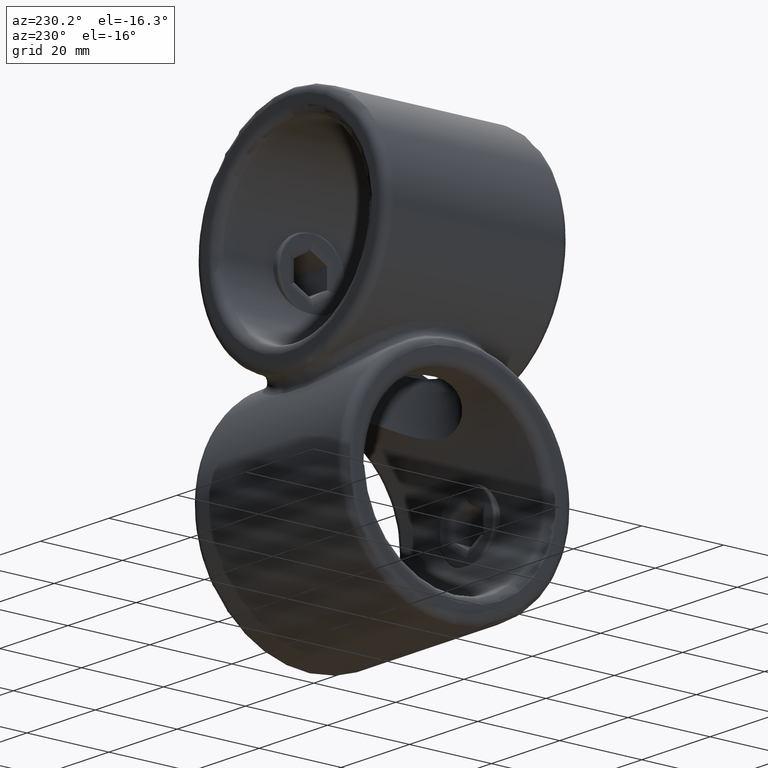
[diagram: clean part render]
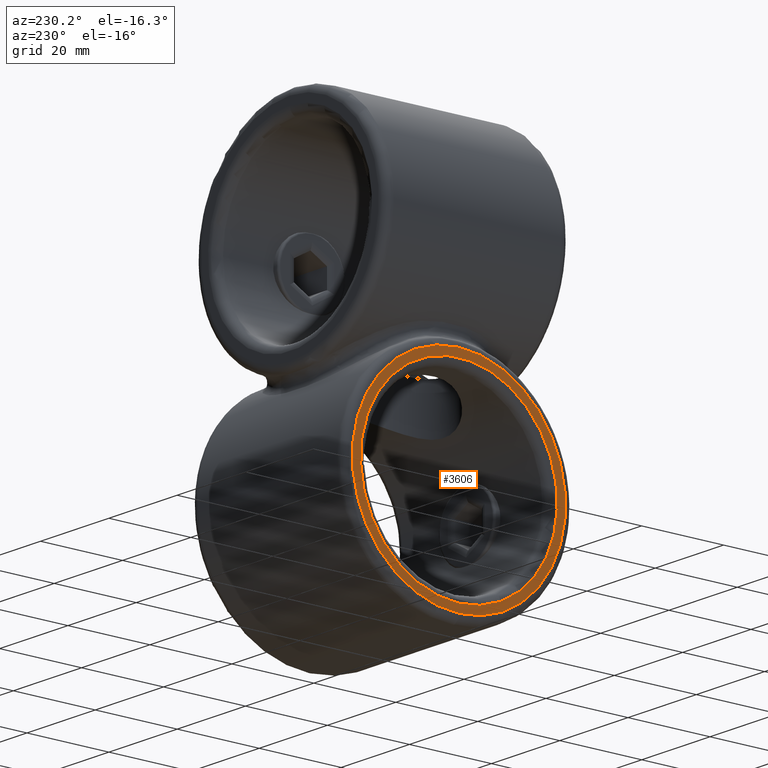
[diagram: same view with one face highlighted and labeled with its STEP entity id]
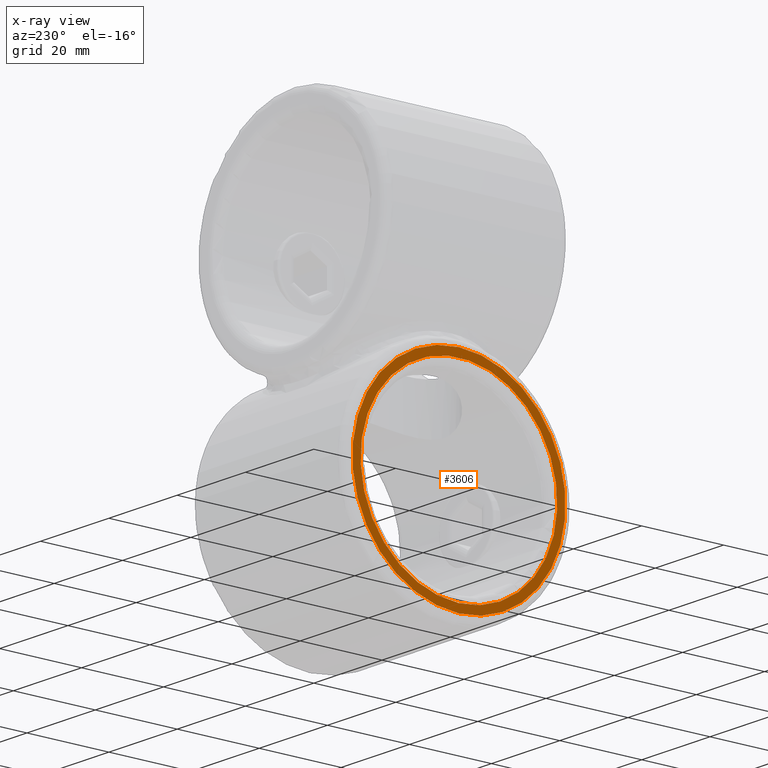
[diagram: x-ray of the same camera — body ghosted, the highlighted face saturated]
A machine part, auxiliary view. The second image highlights one B-rep face of the part: STEP entity #3606.
The next image is the same camera in x-ray: the body ghosted, the highlighted face saturated — about 0% of this face is hidden behind the body in this view.
In plain terms, the highlighted planar face has unit normal (1, 0, 0).
Its self-contained STEP definition (entity closure, byte-faithful):
#41 = DIRECTION ( 'NONE',  ( 0.000000000000000000, 0.000000000000000000, -1.000000000000000000 ) ) ;
#135 = DIRECTION ( 'NONE',  ( -1.000000000000000000, -0.000000000000000000, -0.000000000000000000 ) ) ;
#166 = DIRECTION ( 'NONE',  ( 1.000000000000000000, 0.000000000000000000, 0.000000000000000000 ) ) ;
#219 = FACE_OUTER_BOUND ( 'NONE', #3001, .T. ) ;
#246 = EDGE_CURVE ( 'NONE', #1688, #1688, #2877, .T. ) ;
#538 = CIRCLE ( 'NONE', #1239, 26.00000000000001066 ) ;
#1016 = DIRECTION ( 'NONE',  ( 0.000000000000000000, 0.000000000000000000, -1.000000000000000000 ) ) ;
#1019 = AXIS2_PLACEMENT_3D ( 'NONE', #2439, #2141, #41 ) ;
#1239 = AXIS2_PLACEMENT_3D ( 'NONE', #1926, #135, #2845 ) ;
#1686 = CARTESIAN_POINT ( 'NONE',  ( -22.50000000000000000, 0.000000000000000000, -73.99999999999998579 ) ) ;
#1688 = VERTEX_POINT ( 'NONE', #1686 ) ;
#1926 = CARTESIAN_POINT ( 'NONE',  ( -22.50000000000000000, 0.000000000000000000, -50.00000000000000000 ) ) ;
#2035 = FACE_BOUND ( 'NONE', #3224, .T. ) ;
#2141 = DIRECTION ( 'NONE',  ( 1.000000000000000000, 0.000000000000000000, 0.000000000000000000 ) ) ;
#2178 = ORIENTED_EDGE ( 'NONE', *, *, #2278, .T. ) ;
#2278 = EDGE_CURVE ( 'NONE', #3188, #3188, #538, .T. ) ;
#2302 = CARTESIAN_POINT ( 'NONE',  ( -22.50000000000000000, 0.000000000000000000, -50.00000000000000000 ) ) ;
#2439 = CARTESIAN_POINT ( 'NONE',  ( -22.50000000000000000, 0.000000000000000000, -50.00000000000000000 ) ) ;
#2655 = CARTESIAN_POINT ( 'NONE',  ( -22.50000000000000000, 0.000000000000000000, -76.00000000000001421 ) ) ;
#2845 = DIRECTION ( 'NONE',  ( 0.000000000000000000, 0.000000000000000000, -1.000000000000000000 ) ) ;
#2877 = CIRCLE ( 'NONE', #3132, 23.99999999999997868 ) ;
#3001 = EDGE_LOOP ( 'NONE', ( #2178 ) ) ;
#3030 = ORIENTED_EDGE ( 'NONE', *, *, #246, .T. ) ;
#3078 = PLANE ( 'NONE',  #1019 ) ;
#3132 = AXIS2_PLACEMENT_3D ( 'NONE', #2302, #166, #1016 ) ;
#3188 = VERTEX_POINT ( 'NONE', #2655 ) ;
#3224 = EDGE_LOOP ( 'NONE', ( #3030 ) ) ;
#3606 = ADVANCED_FACE ( 'NONE', ( #2035, #219 ), #3078, .F. ) ;